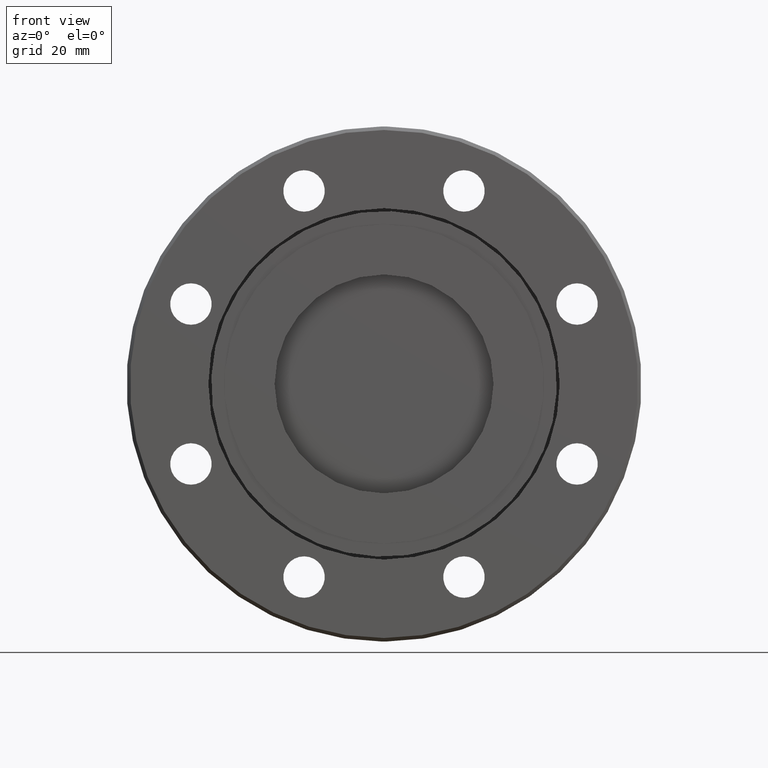
[diagram: clean part render]
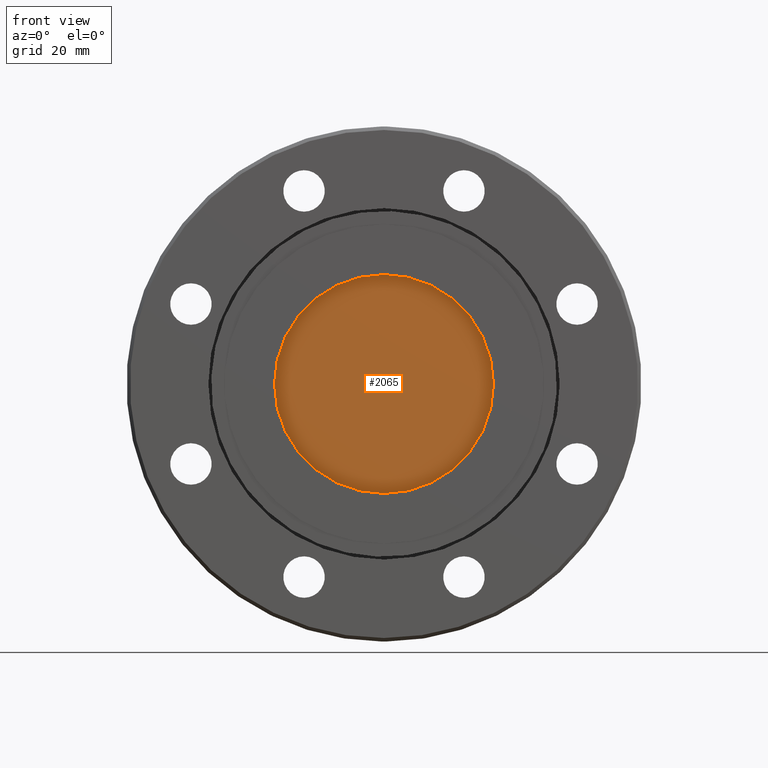
[diagram: same view with one face highlighted and labeled with its STEP entity id]
A machine part, front view. The second image highlights one B-rep face of the part: STEP entity #2065.
In plain terms, the highlighted planar face has unit normal (0, -1, 0).
Its self-contained STEP definition (entity closure, byte-faithful):
#125 = CARTESIAN_POINT ( 'NONE',  ( 1.163414459189985400E-016, 0.2125000000000001900, 0.9499999999999999600 ) ) ;
#221 = DIRECTION ( 'NONE',  ( 0.02704303835527620300, 0.0000000000000000000, -0.9996342701590993400 ) ) ;
#222 = DIRECTION ( 'NONE',  ( 0.0000000000000000000, -1.000000000000000000, 0.0000000000000000000 ) ) ;
#224 = PLANE ( 'NONE',  #605 ) ;
#225 = FACE_OUTER_BOUND ( 'NONE', #2532, .T. ) ;
#239 = CARTESIAN_POINT ( 'NONE',  ( 0.0000000000000000000, 0.2125000000000001900, 0.0000000000000000000 ) ) ;
#418 = CIRCLE ( 'NONE', #618, 0.9499999999999999600 ) ;
#605 = AXIS2_PLACEMENT_3D ( 'NONE', #239, #222, #221 ) ;
#618 = AXIS2_PLACEMENT_3D ( 'NONE', #1910, #1909, #1906 ) ;
#877 = VERTEX_POINT ( 'NONE', #125 ) ;
#921 = ORIENTED_EDGE ( 'NONE', *, *, #2311, .F. ) ;
#1098 = ORIENTED_EDGE ( 'NONE', *, *, #1158, .F. ) ;
#1158 = EDGE_CURVE ( 'NONE', #1271, #877, #418, .T. ) ;
#1271 = VERTEX_POINT ( 'NONE', #1473 ) ;
#1473 = CARTESIAN_POINT ( 'NONE',  ( 0.0000000000000000000, 0.2125000000000001900, -0.9499999999999999600 ) ) ;
#1561 = DIRECTION ( 'NONE',  ( 0.0000000000000000000, 0.0000000000000000000, -1.000000000000000000 ) ) ;
#1562 = DIRECTION ( 'NONE',  ( -0.0000000000000000000, 1.000000000000000000, -0.0000000000000000000 ) ) ;
#1564 = CARTESIAN_POINT ( 'NONE',  ( 0.0000000000000000000, 0.2125000000000001900, 0.0000000000000000000 ) ) ;
#1906 = DIRECTION ( 'NONE',  ( 0.0000000000000000000, 0.0000000000000000000, -1.000000000000000000 ) ) ;
#1909 = DIRECTION ( 'NONE',  ( -0.0000000000000000000, 1.000000000000000000, -0.0000000000000000000 ) ) ;
#1910 = CARTESIAN_POINT ( 'NONE',  ( 0.0000000000000000000, 0.2125000000000001900, 0.0000000000000000000 ) ) ;
#2065 = ADVANCED_FACE ( 'NONE', ( #225 ), #224, .T. ) ;
#2122 = AXIS2_PLACEMENT_3D ( 'NONE', #1564, #1562, #1561 ) ;
#2132 = CIRCLE ( 'NONE', #2122, 0.9499999999999999600 ) ;
#2311 = EDGE_CURVE ( 'NONE', #877, #1271, #2132, .T. ) ;
#2532 = EDGE_LOOP ( 'NONE', ( #1098, #921 ) ) ;